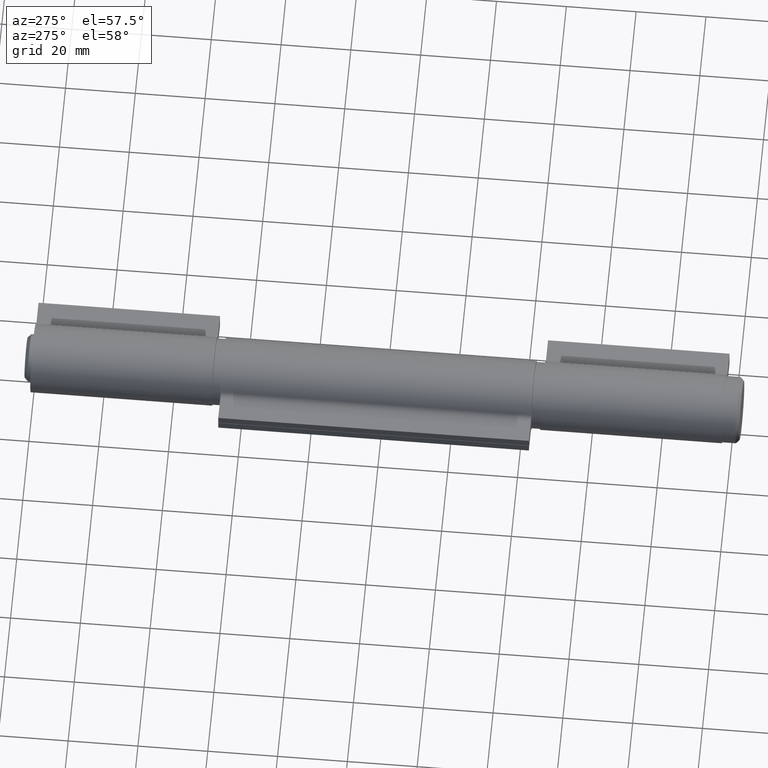
[diagram: clean part render]
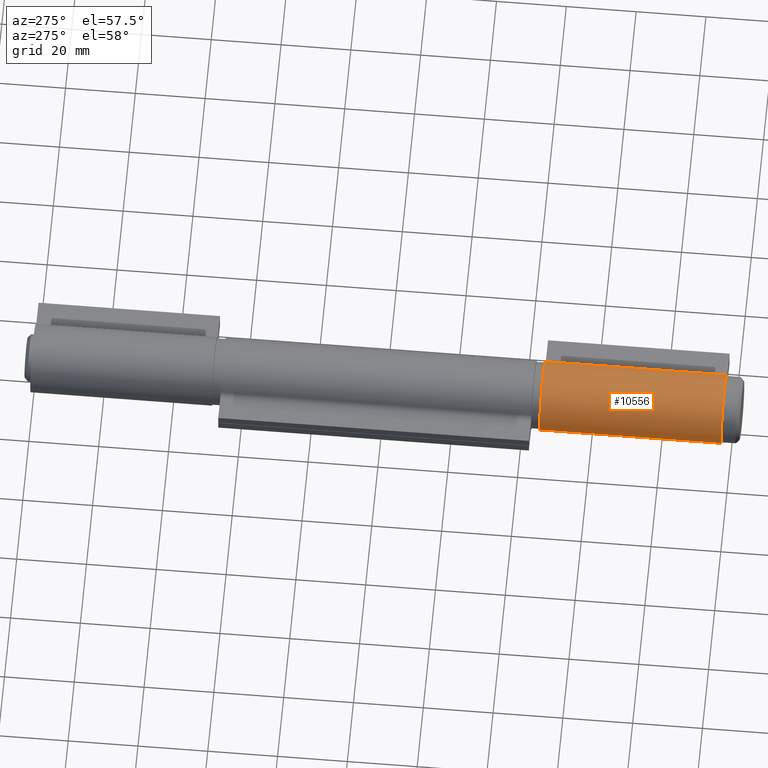
[diagram: same view with one face highlighted and labeled with its STEP entity id]
A machine part, auxiliary view. The second image highlights one B-rep face of the part: STEP entity #10556.
In plain terms, the highlighted cylindrical surface (edge-blend (fillet) strip) has radius 9.8 mm, axis along (0, -1, 0).
Its self-contained STEP definition (entity closure, byte-faithful):
#217 = VERTEX_POINT ( 'NONE', #2346 ) ;
#272 = DIRECTION ( 'NONE',  ( 0.000000000000000000, 0.000000000000000000, 1.000000000000000000 ) ) ;
#2273 = DIRECTION ( 'NONE',  ( 0.000000000000000000, 0.000000000000000000, -1.000000000000000000 ) ) ;
#2346 = CARTESIAN_POINT ( 'NONE',  ( -3.778813559322070414, 25.99999999999999645, -9.042155057500696813 ) ) ;
#2404 = CARTESIAN_POINT ( 'NONE',  ( -3.778813559322070414, -25.99999999999999645, -9.042155057500696813 ) ) ;
#2493 = VERTEX_POINT ( 'NONE', #7216 ) ;
#2691 = CIRCLE ( 'NONE', #12370, 9.800000000000100187 ) ;
#3178 = CARTESIAN_POINT ( 'NONE',  ( -3.778813559322070414, 25.99999999999999645, -9.042155057500696813 ) ) ;
#3188 = CARTESIAN_POINT ( 'NONE',  ( 0.000000000000000000, 25.99999999999999645, 0.000000000000000000 ) ) ;
#3230 = ORIENTED_EDGE ( 'NONE', *, *, #3305, .T. ) ;
#3305 = EDGE_CURVE ( 'NONE', #9674, #2493, #2691, .T. ) ;
#3366 = EDGE_CURVE ( 'NONE', #217, #9916, #12251, .T. ) ;
#3696 = DIRECTION ( 'NONE',  ( 0.000000000000000000, 1.000000000000000000, 0.000000000000000000 ) ) ;
#3730 = VECTOR ( 'NONE', #5978, 1000.000000000000000 ) ;
#3822 = LINE ( 'NONE', #3178, #11127 ) ;
#4193 = LINE ( 'NONE', #11679, #3730 ) ;
#4211 = EDGE_LOOP ( 'NONE', ( #3230, #9278, #7139, #9817 ) ) ;
#4667 = DIRECTION ( 'NONE',  ( 0.000000000000000000, 0.000000000000000000, 1.000000000000000000 ) ) ;
#4716 = FACE_OUTER_BOUND ( 'NONE', #4211, .T. ) ;
#5978 = DIRECTION ( 'NONE',  ( 0.000000000000000000, -1.000000000000000000, 0.000000000000000000 ) ) ;
#6070 = DIRECTION ( 'NONE',  ( 0.000000000000000000, -1.000000000000000000, 0.000000000000000000 ) ) ;
#6285 = EDGE_CURVE ( 'NONE', #9916, #2493, #4193, .T. ) ;
#6927 = AXIS2_PLACEMENT_3D ( 'NONE', #3188, #9905, #272 ) ;
#7139 = ORIENTED_EDGE ( 'NONE', *, *, #3366, .F. ) ;
#7216 = CARTESIAN_POINT ( 'NONE',  ( 3.778813559322075299, -25.99999999999999645, -9.042155057500695037 ) ) ;
#8056 = DIRECTION ( 'NONE',  ( 0.000000000000000000, -1.000000000000000000, 0.000000000000000000 ) ) ;
#8481 = CARTESIAN_POINT ( 'NONE',  ( 0.000000000000000000, -25.99999999999999645, 0.000000000000000000 ) ) ;
#9278 = ORIENTED_EDGE ( 'NONE', *, *, #6285, .F. ) ;
#9581 = EDGE_CURVE ( 'NONE', #217, #9674, #3822, .T. ) ;
#9674 = VERTEX_POINT ( 'NONE', #2404 ) ;
#9817 = ORIENTED_EDGE ( 'NONE', *, *, #9581, .T. ) ;
#9905 = DIRECTION ( 'NONE',  ( 0.000000000000000000, 1.000000000000000000, 0.000000000000000000 ) ) ;
#9916 = VERTEX_POINT ( 'NONE', #10425 ) ;
#10031 = CARTESIAN_POINT ( 'NONE',  ( 0.000000000000000000, 25.99999999999999645, 0.000000000000000000 ) ) ;
#10425 = CARTESIAN_POINT ( 'NONE',  ( 3.778813559322075299, 25.99999999999999645, -9.042155057500695037 ) ) ;
#10556 = ADVANCED_FACE ( 'NONE', ( #4716 ), #12292, .T. ) ;
#10895 = AXIS2_PLACEMENT_3D ( 'NONE', #10031, #8056, #2273 ) ;
#11127 = VECTOR ( 'NONE', #6070, 1000.000000000000000 ) ;
#11679 = CARTESIAN_POINT ( 'NONE',  ( 3.778813559322075299, 25.99999999999999645, -9.042155057500695037 ) ) ;
#12251 = CIRCLE ( 'NONE', #6927, 9.800000000000100187 ) ;
#12292 = CYLINDRICAL_SURFACE ( 'NONE', #10895, 9.800000000000100187 ) ;
#12370 = AXIS2_PLACEMENT_3D ( 'NONE', #8481, #3696, #4667 ) ;